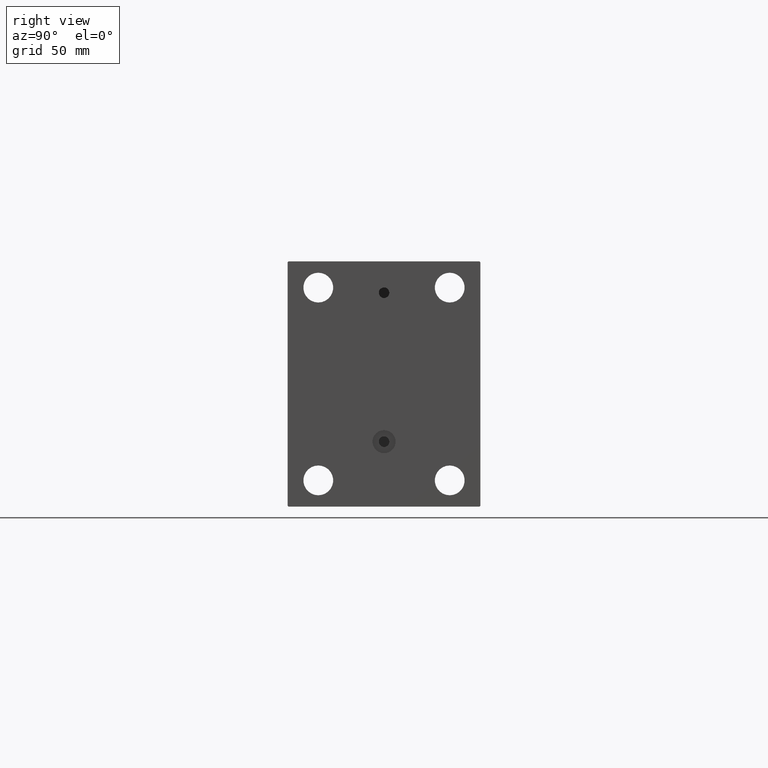
[diagram: clean part render]
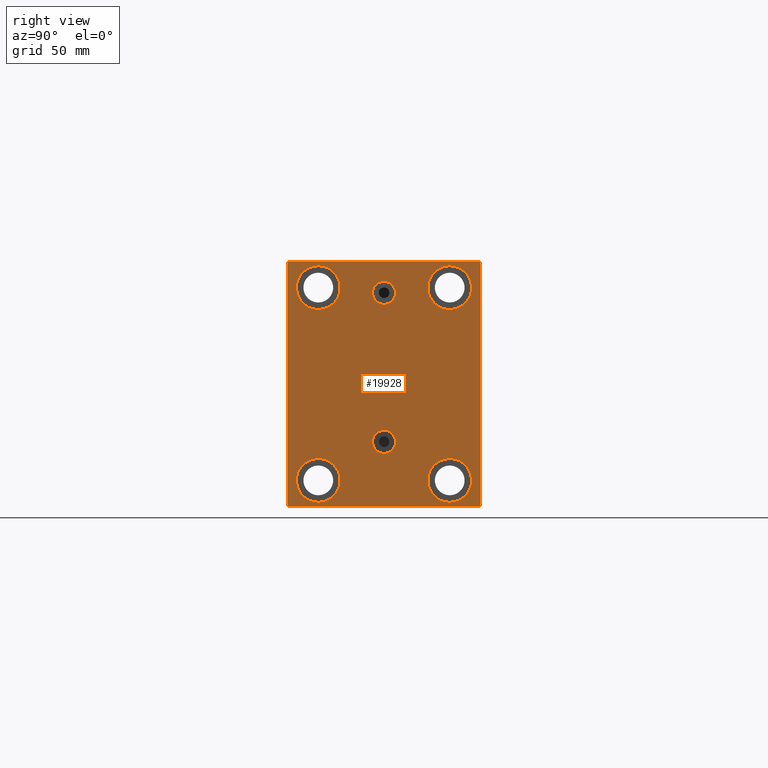
[diagram: same view with one face highlighted and labeled with its STEP entity id]
A machine part, right view. The second image highlights one B-rep face of the part: STEP entity #19928.
In plain terms, the highlighted planar face has unit normal (1, 0, 0).
Its self-contained STEP definition (entity closure, byte-faithful):
#27 = DIRECTION ( 'NONE',  ( 1.000000000000000000, 0.000000000000000000, 0.000000000000000000 ) ) ;
#210 = ORIENTED_EDGE ( 'NONE', *, *, #15454, .T. ) ;
#681 = CIRCLE ( 'NONE', #22514, 12.49999999999999645 ) ;
#1912 = ORIENTED_EDGE ( 'NONE', *, *, #23669, .F. ) ;
#2156 = EDGE_LOOP ( 'NONE', ( #10608, #7605 ) ) ;
#2814 = LINE ( 'NONE', #17675, #42753 ) ;
#3114 = CARTESIAN_POINT ( 'NONE',  ( 253.0000000000000000, 37.50000000000000711, 55.00000000000000711 ) ) ;
#3205 = CARTESIAN_POINT ( 'NONE',  ( 253.0000000000000000, 55.00000000000002132, -69.50000000000002842 ) ) ;
#3313 = EDGE_CURVE ( 'NONE', #5927, #10187, #11807, .T. ) ;
#3599 = CIRCLE ( 'NONE', #10391, 6.580000000000002736 ) ;
#3750 = CARTESIAN_POINT ( 'NONE',  ( 253.0000000000000000, -37.50000000000002132, -42.49999999999999289 ) ) ;
#4258 = CIRCLE ( 'NONE', #14064, 12.49999999999999645 ) ;
#4564 = LINE ( 'NONE', #18956, #35562 ) ;
#4985 = VERTEX_POINT ( 'NONE', #21661 ) ;
#5173 = DIRECTION ( 'NONE',  ( -1.000000000000000000, -0.000000000000000000, -0.000000000000000000 ) ) ;
#5271 = VERTEX_POINT ( 'NONE', #3205 ) ;
#5288 = AXIS2_PLACEMENT_3D ( 'NONE', #26423, #44592, #5409 ) ;
#5409 = DIRECTION ( 'NONE',  ( 0.000000000000000000, 0.000000000000000000, -1.000000000000000000 ) ) ;
#5500 = VERTEX_POINT ( 'NONE', #12817 ) ;
#5552 = EDGE_CURVE ( 'NONE', #21420, #7354, #17024, .T. ) ;
#5554 = DIRECTION ( 'NONE',  ( -0.000000000000000000, -0.7071067811865279218, 0.7071067811865671127 ) ) ;
#5927 = VERTEX_POINT ( 'NONE', #3750 ) ;
#5958 = VERTEX_POINT ( 'NONE', #43638 ) ;
#5997 = ORIENTED_EDGE ( 'NONE', *, *, #5552, .T. ) ;
#6362 = VERTEX_POINT ( 'NONE', #7230 ) ;
#6404 = DIRECTION ( 'NONE',  ( 0.000000000000000000, 0.000000000000000000, 1.000000000000000000 ) ) ;
#6414 = CARTESIAN_POINT ( 'NONE',  ( 253.0000000000000000, -62.25000000000230216, -62.24999999999712941 ) ) ;
#6542 = EDGE_CURVE ( 'NONE', #22985, #21420, #38576, .T. ) ;
#6583 = CIRCLE ( 'NONE', #29968, 12.49999999999999645 ) ;
#6817 = EDGE_CURVE ( 'NONE', #5500, #41909, #23188, .T. ) ;
#7230 = CARTESIAN_POINT ( 'NONE',  ( 253.0000000000000000, 37.50000000000000711, 67.50000000000000000 ) ) ;
#7354 = VERTEX_POINT ( 'NONE', #36497 ) ;
#7378 = DIRECTION ( 'NONE',  ( 0.000000000000000000, 0.000000000000000000, 1.000000000000000000 ) ) ;
#7605 = ORIENTED_EDGE ( 'NONE', *, *, #25132, .T. ) ;
#7613 = VERTEX_POINT ( 'NONE', #26546 ) ;
#8108 = VECTOR ( 'NONE', #13508, 1000.000000000000000 ) ;
#8555 = CARTESIAN_POINT ( 'NONE',  ( 253.0000000000000000, 62.25000000000002842, -62.25000000000002842 ) ) ;
#9210 = EDGE_LOOP ( 'NONE', ( #19632, #210 ) ) ;
#9272 = CARTESIAN_POINT ( 'NONE',  ( 253.0000000000000000, -37.50000000000002132, -54.99999999999999289 ) ) ;
#9436 = EDGE_CURVE ( 'NONE', #27792, #34168, #30787, .T. ) ;
#9547 = CARTESIAN_POINT ( 'NONE',  ( 253.0000000000000000, 62.25000000000152767, 62.24999999999806732 ) ) ;
#9706 = ORIENTED_EDGE ( 'NONE', *, *, #32063, .F. ) ;
#10087 = CARTESIAN_POINT ( 'NONE',  ( 253.0000000000000000, -55.00000000000000711, -69.50000000000001421 ) ) ;
#10187 = VERTEX_POINT ( 'NONE', #15278 ) ;
#10262 = CARTESIAN_POINT ( 'NONE',  ( 253.0000000000000000, 37.49999999999997868, -42.49999999999999289 ) ) ;
#10315 = VECTOR ( 'NONE', #5554, 1000.000000000000000 ) ;
#10391 = AXIS2_PLACEMENT_3D ( 'NONE', #39662, #27, #14441 ) ;
#10462 = DIRECTION ( 'NONE',  ( -1.000000000000000000, -0.000000000000000000, -0.000000000000000000 ) ) ;
#10608 = ORIENTED_EDGE ( 'NONE', *, *, #39096, .T. ) ;
#10624 = EDGE_CURVE ( 'NONE', #25169, #29440, #6583, .T. ) ;
#10990 = CARTESIAN_POINT ( 'NONE',  ( 253.0000000000000000, -55.00000000000000711, -70.00000000000002842 ) ) ;
#11138 = AXIS2_PLACEMENT_3D ( 'NONE', #12987, #27366, #26686 ) ;
#11292 = DIRECTION ( 'NONE',  ( 0.000000000000000000, 0.000000000000000000, 1.000000000000000000 ) ) ;
#11807 = CIRCLE ( 'NONE', #32885, 12.49999999999999645 ) ;
#12817 = CARTESIAN_POINT ( 'NONE',  ( 253.0000000000000000, -7.970046508789298136E-15, 58.58000000000000540 ) ) ;
#12987 = CARTESIAN_POINT ( 'NONE',  ( 253.0000000000000000, 37.49999999999997868, -54.99999999999999289 ) ) ;
#13038 = CARTESIAN_POINT ( 'NONE',  ( 253.0000000000000000, 4.041334437186266200E-15, -33.00000000000000000 ) ) ;
#13080 = CARTESIAN_POINT ( 'NONE',  ( 253.0000000000000000, 4.041334437186266200E-15, -39.58000000000000540 ) ) ;
#13277 = CARTESIAN_POINT ( 'NONE',  ( 253.0000000000000000, -8.775864102628257178E-15, 52.00000000000000711 ) ) ;
#13508 = DIRECTION ( 'NONE',  ( -0.000000000000000000, 0.7071067811865181518, -0.7071067811865769936 ) ) ;
#13609 = EDGE_CURVE ( 'NONE', #7354, #29809, #32201, .T. ) ;
#13673 = CARTESIAN_POINT ( 'NONE',  ( 253.0000000000000000, 54.50000000000004974, -70.00000000000000000 ) ) ;
#14064 = AXIS2_PLACEMENT_3D ( 'NONE', #44354, #5173, #27106 ) ;
#14340 = CARTESIAN_POINT ( 'NONE',  ( 253.0000000000000000, -55.00000000000000711, 69.50000000000004263 ) ) ;
#14441 = DIRECTION ( 'NONE',  ( 0.000000000000000000, 0.000000000000000000, -1.000000000000000000 ) ) ;
#14756 = DIRECTION ( 'NONE',  ( 0.000000000000000000, 1.000000000000000000, 2.523234146875355012E-16 ) ) ;
#15278 = CARTESIAN_POINT ( 'NONE',  ( 253.0000000000000000, -37.50000000000002132, -67.49999999999998579 ) ) ;
#15293 = EDGE_CURVE ( 'NONE', #29809, #5271, #27173, .T. ) ;
#15454 = EDGE_CURVE ( 'NONE', #29440, #25169, #39114, .T. ) ;
#15455 = EDGE_CURVE ( 'NONE', #37891, #23408, #23277, .T. ) ;
#15852 = CARTESIAN_POINT ( 'NONE',  ( 253.0000000000000000, 4.847152031025224453E-15, -26.41999999999999815 ) ) ;
#16026 = FACE_BOUND ( 'NONE', #9210, .T. ) ;
#16403 = DIRECTION ( 'NONE',  ( 0.000000000000000000, 0.000000000000000000, -1.000000000000000000 ) ) ;
#16550 = CARTESIAN_POINT ( 'NONE',  ( 253.0000000000000000, -37.50000000000000711, 42.50000000000000711 ) ) ;
#16709 = FACE_BOUND ( 'NONE', #2156, .T. ) ;
#16745 = EDGE_LOOP ( 'NONE', ( #1912, #46624 ) ) ;
#17024 = LINE ( 'NONE', #6414, #8108 ) ;
#17121 = CIRCLE ( 'NONE', #38948, 6.580000000000002736 ) ;
#17675 = CARTESIAN_POINT ( 'NONE',  ( 253.0000000000000000, -62.25000000000002132, 62.25000000000002132 ) ) ;
#17974 = DIRECTION ( 'NONE',  ( 0.000000000000000000, 0.000000000000000000, 1.000000000000000000 ) ) ;
#18129 = ORIENTED_EDGE ( 'NONE', *, *, #30622, .T. ) ;
#18956 = CARTESIAN_POINT ( 'NONE',  ( 253.0000000000000000, 55.00000000000002132, -70.00000000000000000 ) ) ;
#19557 = FACE_BOUND ( 'NONE', #32604, .T. ) ;
#19632 = ORIENTED_EDGE ( 'NONE', *, *, #10624, .T. ) ;
#19928 = ADVANCED_FACE ( 'NONE', ( #40813, #34646, #33725, #16026, #16709, #19557, #41039 ), #41500, .T. ) ;
#19963 = DIRECTION ( 'NONE',  ( 0.000000000000000000, -1.000000000000000000, -1.261617073437677999E-16 ) ) ;
#20230 = VECTOR ( 'NONE', #14756, 1000.000000000000000 ) ;
#20419 = CARTESIAN_POINT ( 'NONE',  ( 253.0000000000000000, -55.00000000000000711, 69.99999999999998579 ) ) ;
#20630 = EDGE_LOOP ( 'NONE', ( #9706, #38456 ) ) ;
#21420 = VERTEX_POINT ( 'NONE', #10087 ) ;
#21661 = CARTESIAN_POINT ( 'NONE',  ( 253.0000000000000000, 37.49999999999997868, -67.49999999999998579 ) ) ;
#21890 = DIRECTION ( 'NONE',  ( -1.000000000000000000, -0.000000000000000000, -0.000000000000000000 ) ) ;
#22152 = ORIENTED_EDGE ( 'NONE', *, *, #6542, .T. ) ;
#22514 = AXIS2_PLACEMENT_3D ( 'NONE', #28971, #21890, #11292 ) ;
#22985 = VERTEX_POINT ( 'NONE', #14340 ) ;
#23188 = CIRCLE ( 'NONE', #26968, 6.580000000000002736 ) ;
#23277 = LINE ( 'NONE', #30580, #36875 ) ;
#23408 = VERTEX_POINT ( 'NONE', #31614 ) ;
#23669 = EDGE_CURVE ( 'NONE', #34168, #27792, #17121, .T. ) ;
#23862 = CARTESIAN_POINT ( 'NONE',  ( 253.0000000000000000, -8.775864102628257178E-15, 45.42000000000000171 ) ) ;
#23895 = DIRECTION ( 'NONE',  ( 1.000000000000000000, 0.000000000000000000, 0.000000000000000000 ) ) ;
#24650 = EDGE_CURVE ( 'NONE', #4985, #38871, #4258, .T. ) ;
#24736 = EDGE_LOOP ( 'NONE', ( #44318, #26717, #22152, #5997, #36126, #27131, #44878, #42899 ) ) ;
#24778 = ORIENTED_EDGE ( 'NONE', *, *, #24650, .T. ) ;
#25132 = EDGE_CURVE ( 'NONE', #6362, #7613, #46469, .T. ) ;
#25169 = VERTEX_POINT ( 'NONE', #16550 ) ;
#25302 = DIRECTION ( 'NONE',  ( -1.000000000000000000, -0.000000000000000000, -0.000000000000000000 ) ) ;
#26423 = CARTESIAN_POINT ( 'NONE',  ( 253.0000000000000000, 0.000000000000000000, 0.000000000000000000 ) ) ;
#26546 = CARTESIAN_POINT ( 'NONE',  ( 253.0000000000000000, 37.50000000000000711, 42.50000000000000711 ) ) ;
#26686 = DIRECTION ( 'NONE',  ( 0.000000000000000000, 0.000000000000000000, 1.000000000000000000 ) ) ;
#26717 = ORIENTED_EDGE ( 'NONE', *, *, #26868, .T. ) ;
#26868 = EDGE_CURVE ( 'NONE', #23408, #22985, #2814, .T. ) ;
#26968 = AXIS2_PLACEMENT_3D ( 'NONE', #13277, #23895, #41826 ) ;
#27106 = DIRECTION ( 'NONE',  ( 0.000000000000000000, 0.000000000000000000, 1.000000000000000000 ) ) ;
#27131 = ORIENTED_EDGE ( 'NONE', *, *, #15293, .T. ) ;
#27173 = LINE ( 'NONE', #8555, #30833 ) ;
#27285 = DIRECTION ( 'NONE',  ( -1.000000000000000000, -0.000000000000000000, -0.000000000000000000 ) ) ;
#27366 = DIRECTION ( 'NONE',  ( -1.000000000000000000, -0.000000000000000000, -0.000000000000000000 ) ) ;
#27632 = CARTESIAN_POINT ( 'NONE',  ( 253.0000000000000000, -37.50000000000000711, 67.50000000000000000 ) ) ;
#27792 = VERTEX_POINT ( 'NONE', #15852 ) ;
#27874 = DIRECTION ( 'NONE',  ( -1.000000000000000000, -0.000000000000000000, -0.000000000000000000 ) ) ;
#27901 = DIRECTION ( 'NONE',  ( -1.000000000000000000, -0.000000000000000000, -0.000000000000000000 ) ) ;
#28140 = CARTESIAN_POINT ( 'NONE',  ( 253.0000000000000000, -37.50000000000000711, 55.00000000000000711 ) ) ;
#28971 = CARTESIAN_POINT ( 'NONE',  ( 253.0000000000000000, -37.50000000000002132, -54.99999999999999289 ) ) ;
#29281 = AXIS2_PLACEMENT_3D ( 'NONE', #13038, #34055, #41805 ) ;
#29316 = CARTESIAN_POINT ( 'NONE',  ( 253.0000000000000000, 37.50000000000000711, 55.00000000000000711 ) ) ;
#29361 = AXIS2_PLACEMENT_3D ( 'NONE', #34823, #27285, #44768 ) ;
#29440 = VERTEX_POINT ( 'NONE', #27632 ) ;
#29809 = VERTEX_POINT ( 'NONE', #13673 ) ;
#29968 = AXIS2_PLACEMENT_3D ( 'NONE', #28140, #10462, #42540 ) ;
#30010 = EDGE_CURVE ( 'NONE', #5958, #37891, #34110, .T. ) ;
#30192 = AXIS2_PLACEMENT_3D ( 'NONE', #3114, #27901, #17974 ) ;
#30580 = CARTESIAN_POINT ( 'NONE',  ( 253.0000000000000000, 54.99999999999999289, 70.00000000000000000 ) ) ;
#30622 = EDGE_CURVE ( 'NONE', #38871, #4985, #42751, .T. ) ;
#30787 = CIRCLE ( 'NONE', #29281, 6.580000000000002736 ) ;
#30833 = VECTOR ( 'NONE', #34034, 1000.000000000000114 ) ;
#31362 = EDGE_LOOP ( 'NONE', ( #24778, #18129 ) ) ;
#31449 = VECTOR ( 'NONE', #16403, 1000.000000000000000 ) ;
#31614 = CARTESIAN_POINT ( 'NONE',  ( 253.0000000000000000, -54.50000000000006395, 69.99999999999998579 ) ) ;
#31782 = ORIENTED_EDGE ( 'NONE', *, *, #34352, .T. ) ;
#32063 = EDGE_CURVE ( 'NONE', #41909, #5500, #3599, .T. ) ;
#32201 = LINE ( 'NONE', #10990, #20230 ) ;
#32604 = EDGE_LOOP ( 'NONE', ( #31782, #45780 ) ) ;
#32868 = DIRECTION ( 'NONE',  ( 0.000000000000000000, -1.982541115402065110E-16, 1.000000000000000000 ) ) ;
#32885 = AXIS2_PLACEMENT_3D ( 'NONE', #9272, #27874, #6404 ) ;
#32915 = AXIS2_PLACEMENT_3D ( 'NONE', #29316, #25302, #7378 ) ;
#33725 = FACE_BOUND ( 'NONE', #31362, .T. ) ;
#34034 = DIRECTION ( 'NONE',  ( -0.000000000000000000, 0.7071067811865474617, 0.7071067811865474617 ) ) ;
#34055 = DIRECTION ( 'NONE',  ( 1.000000000000000000, 0.000000000000000000, -0.000000000000000000 ) ) ;
#34110 = LINE ( 'NONE', #9547, #10315 ) ;
#34168 = VERTEX_POINT ( 'NONE', #13080 ) ;
#34352 = EDGE_CURVE ( 'NONE', #10187, #5927, #681, .T. ) ;
#34646 = FACE_BOUND ( 'NONE', #16745, .T. ) ;
#34823 = CARTESIAN_POINT ( 'NONE',  ( 253.0000000000000000, -37.50000000000000711, 55.00000000000000711 ) ) ;
#35562 = VECTOR ( 'NONE', #32868, 1000.000000000000000 ) ;
#36126 = ORIENTED_EDGE ( 'NONE', *, *, #13609, .T. ) ;
#36497 = CARTESIAN_POINT ( 'NONE',  ( 253.0000000000000000, -54.50000000000003553, -70.00000000000002842 ) ) ;
#36602 = CARTESIAN_POINT ( 'NONE',  ( 253.0000000000000000, 54.50000000000002132, 70.00000000000000000 ) ) ;
#36875 = VECTOR ( 'NONE', #19963, 1000.000000000000000 ) ;
#37891 = VERTEX_POINT ( 'NONE', #36602 ) ;
#38115 = DIRECTION ( 'NONE',  ( 0.000000000000000000, 0.000000000000000000, 1.000000000000000000 ) ) ;
#38351 = DIRECTION ( 'NONE',  ( 1.000000000000000000, 0.000000000000000000, -0.000000000000000000 ) ) ;
#38456 = ORIENTED_EDGE ( 'NONE', *, *, #6817, .F. ) ;
#38576 = LINE ( 'NONE', #20419, #31449 ) ;
#38871 = VERTEX_POINT ( 'NONE', #10262 ) ;
#38917 = DIRECTION ( 'NONE',  ( 0.000000000000000000, -0.7071067811865474617, -0.7071067811865474617 ) ) ;
#38948 = AXIS2_PLACEMENT_3D ( 'NONE', #41673, #38351, #38115 ) ;
#39096 = EDGE_CURVE ( 'NONE', #7613, #6362, #42991, .T. ) ;
#39114 = CIRCLE ( 'NONE', #29361, 12.49999999999999645 ) ;
#39662 = CARTESIAN_POINT ( 'NONE',  ( 253.0000000000000000, -8.775864102628257178E-15, 52.00000000000000711 ) ) ;
#40813 = FACE_BOUND ( 'NONE', #20630, .T. ) ;
#41039 = FACE_OUTER_BOUND ( 'NONE', #24736, .T. ) ;
#41500 = PLANE ( 'NONE',  #5288 ) ;
#41673 = CARTESIAN_POINT ( 'NONE',  ( 253.0000000000000000, 4.041334437186266200E-15, -33.00000000000000000 ) ) ;
#41805 = DIRECTION ( 'NONE',  ( 0.000000000000000000, 0.000000000000000000, 1.000000000000000000 ) ) ;
#41826 = DIRECTION ( 'NONE',  ( 0.000000000000000000, 0.000000000000000000, -1.000000000000000000 ) ) ;
#41909 = VERTEX_POINT ( 'NONE', #23862 ) ;
#42540 = DIRECTION ( 'NONE',  ( 0.000000000000000000, 0.000000000000000000, 1.000000000000000000 ) ) ;
#42689 = EDGE_CURVE ( 'NONE', #5271, #5958, #4564, .T. ) ;
#42751 = CIRCLE ( 'NONE', #11138, 12.49999999999999645 ) ;
#42753 = VECTOR ( 'NONE', #38917, 1000.000000000000114 ) ;
#42899 = ORIENTED_EDGE ( 'NONE', *, *, #30010, .T. ) ;
#42991 = CIRCLE ( 'NONE', #30192, 12.49999999999999645 ) ;
#43638 = CARTESIAN_POINT ( 'NONE',  ( 253.0000000000000000, 54.99999999999999289, 69.50000000000000000 ) ) ;
#44318 = ORIENTED_EDGE ( 'NONE', *, *, #15455, .T. ) ;
#44354 = CARTESIAN_POINT ( 'NONE',  ( 253.0000000000000000, 37.49999999999997868, -54.99999999999999289 ) ) ;
#44592 = DIRECTION ( 'NONE',  ( 1.000000000000000000, 0.000000000000000000, 0.000000000000000000 ) ) ;
#44768 = DIRECTION ( 'NONE',  ( 0.000000000000000000, 0.000000000000000000, 1.000000000000000000 ) ) ;
#44878 = ORIENTED_EDGE ( 'NONE', *, *, #42689, .T. ) ;
#45780 = ORIENTED_EDGE ( 'NONE', *, *, #3313, .T. ) ;
#46469 = CIRCLE ( 'NONE', #32915, 12.49999999999999645 ) ;
#46624 = ORIENTED_EDGE ( 'NONE', *, *, #9436, .F. ) ;